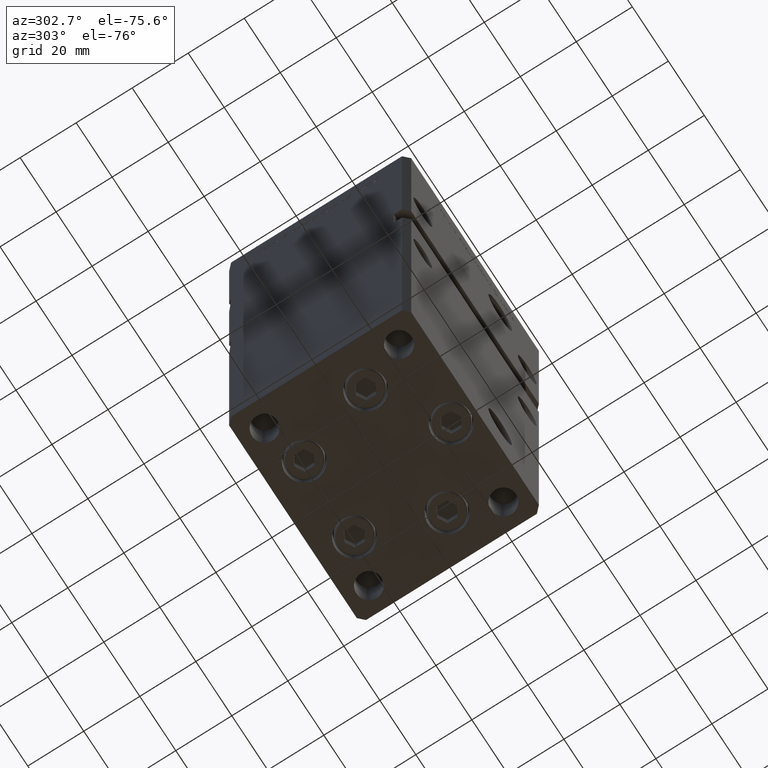
[diagram: clean part render]
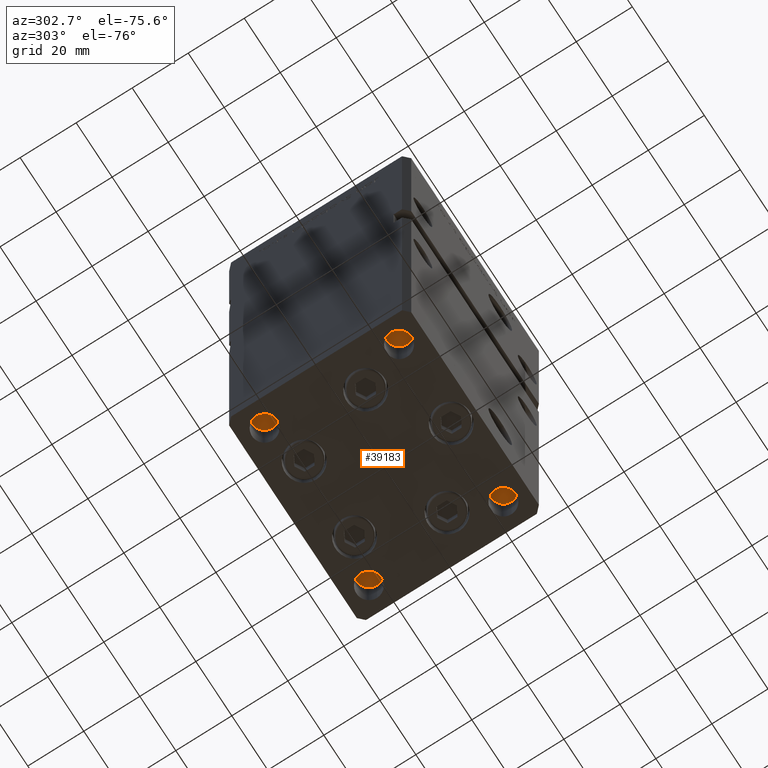
[diagram: same view with one face highlighted and labeled with its STEP entity id]
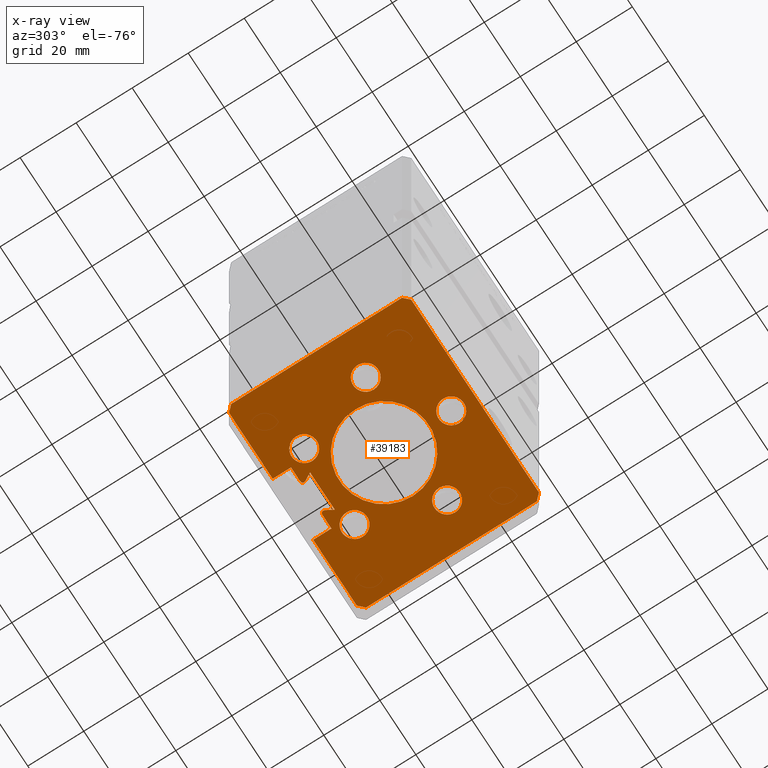
[diagram: x-ray of the same camera — body ghosted, the highlighted face saturated]
A machine part, auxiliary view. The second image highlights one B-rep face of the part: STEP entity #39183.
The next image is the same camera in x-ray: the body ghosted, the highlighted face saturated — about 0% of this face is hidden behind the body in this view.
In plain terms, the highlighted planar face has unit normal (0, 0, -1).
Its self-contained STEP definition (entity closure, byte-faithful):
#725 = DIRECTION ( 'NONE',  ( -1.000000000000000000, 0.000000000000000000, 0.000000000000000000 ) ) ;
#1099 = CARTESIAN_POINT ( 'NONE',  ( -35.49999999999999289, -32.50000000000000000, 0.000000000000000000 ) ) ;
#1628 = LINE ( 'NONE', #1099, #36816 ) ;
#1835 = AXIS2_PLACEMENT_3D ( 'NONE', #4671, #41501, #28367 ) ;
#1964 = EDGE_CURVE ( 'NONE', #11757, #12367, #46050, .T. ) ;
#2236 = AXIS2_PLACEMENT_3D ( 'NONE', #33245, #29779, #32984 ) ;
#2299 = LINE ( 'NONE', #18744, #11178 ) ;
#2336 = EDGE_CURVE ( 'NONE', #21238, #24756, #48105, .T. ) ;
#2414 = CIRCLE ( 'NONE', #4084, 16.00000000000000000 ) ;
#2524 = ORIENTED_EDGE ( 'NONE', *, *, #47862, .F. ) ;
#2592 = EDGE_CURVE ( 'NONE', #34089, #51096, #18256, .T. ) ;
#2799 = CARTESIAN_POINT ( 'NONE',  ( -5.375042956467928512, 24.59999999999899245, 0.000000000000000000 ) ) ;
#3296 = DIRECTION ( 'NONE',  ( -0.000000000000000000, -0.000000000000000000, -1.000000000000000000 ) ) ;
#3383 = EDGE_LOOP ( 'NONE', ( #33923, #40749 ) ) ;
#4084 = AXIS2_PLACEMENT_3D ( 'NONE', #41789, #49861, #41241 ) ;
#4313 = EDGE_CURVE ( 'NONE', #44512, #4630, #1628, .T. ) ;
#4351 = VECTOR ( 'NONE', #40785, 1000.000000000000000 ) ;
#4445 = ORIENTED_EDGE ( 'NONE', *, *, #33471, .F. ) ;
#4630 = VERTEX_POINT ( 'NONE', #39658 ) ;
#4671 = CARTESIAN_POINT ( 'NONE',  ( -13.99106857963322881, 19.49999999999999645, 0.000000000000000000 ) ) ;
#4686 = ORIENTED_EDGE ( 'NONE', *, *, #2592, .T. ) ;
#4834 = DIRECTION ( 'NONE',  ( -0.4999999999999996114, -0.8660254037844388186, -0.000000000000000000 ) ) ;
#5067 = AXIS2_PLACEMENT_3D ( 'NONE', #5196, #30218, #9779 ) ;
#5196 = CARTESIAN_POINT ( 'NONE',  ( 0.000000000000000000, 0.000000000000000000, 0.000000000000000000 ) ) ;
#5213 = DIRECTION ( 'NONE',  ( -0.000000000000000000, -0.000000000000000000, -1.000000000000000000 ) ) ;
#5329 = EDGE_LOOP ( 'NONE', ( #16553, #11680 ) ) ;
#5546 = CIRCLE ( 'NONE', #45878, 4.500000000000000888 ) ;
#5629 = VERTEX_POINT ( 'NONE', #52095 ) ;
#5812 = DIRECTION ( 'NONE',  ( 1.000000000000000000, 0.000000000000000000, 0.000000000000000000 ) ) ;
#5935 = ORIENTED_EDGE ( 'NONE', *, *, #47138, .T. ) ;
#6005 = VERTEX_POINT ( 'NONE', #36612 ) ;
#6013 = CARTESIAN_POINT ( 'NONE',  ( -37.49999999999999289, -30.50000000000000000, 0.000000000000000000 ) ) ;
#6062 = CARTESIAN_POINT ( 'NONE',  ( 11.24999999999998046, 26.00000000000000000, 0.000000000000000000 ) ) ;
#6126 = EDGE_LOOP ( 'NONE', ( #4686, #25356, #11504, #23418, #36285, #48198, #40872, #40144, #27737, #51902, #36032, #39822, #5935, #50141, #11754, #12365, #14523, #28897, #4445 ) ) ;
#6129 = VECTOR ( 'NONE', #4834, 1000.000000000000114 ) ;
#6344 = CIRCLE ( 'NONE', #9804, 4.500000000000000888 ) ;
#6377 = ORIENTED_EDGE ( 'NONE', *, *, #25554, .F. ) ;
#6915 = DIRECTION ( 'NONE',  ( 1.000000000000000000, 0.000000000000000000, 0.000000000000000000 ) ) ;
#6916 = CIRCLE ( 'NONE', #40403, 4.500000000000000000 ) ;
#6939 = CARTESIAN_POINT ( 'NONE',  ( -35.50000000000000711, 32.50000000000000000, 0.000000000000000000 ) ) ;
#7383 = VERTEX_POINT ( 'NONE', #16436 ) ;
#7821 = VECTOR ( 'NONE', #39163, 1000.000000000000114 ) ;
#7956 = DIRECTION ( 'NONE',  ( 0.000000000000000000, 0.000000000000000000, -1.000000000000000000 ) ) ;
#8013 = DIRECTION ( 'NONE',  ( -1.000000000000000000, 0.000000000000000000, 0.000000000000000000 ) ) ;
#8299 = VERTEX_POINT ( 'NONE', #50811 ) ;
#8521 = VERTEX_POINT ( 'NONE', #16640 ) ;
#8545 = CARTESIAN_POINT ( 'NONE',  ( 37.50000000000001421, 30.50000000000001066, 0.000000000000000000 ) ) ;
#8687 = PLANE ( 'NONE',  #5067 ) ;
#8729 = CIRCLE ( 'NONE', #43929, 4.499999999999997335 ) ;
#9142 = CARTESIAN_POINT ( 'NONE',  ( -6.876153656360448174, 21.99999999999987210, 0.000000000000000000 ) ) ;
#9232 = LINE ( 'NONE', #21614, #28509 ) ;
#9579 = LINE ( 'NONE', #6062, #33114 ) ;
#9779 = DIRECTION ( 'NONE',  ( -1.000000000000000000, 0.000000000000000000, -0.000000000000000000 ) ) ;
#9804 = AXIS2_PLACEMENT_3D ( 'NONE', #19535, #45012, #11711 ) ;
#9861 = CARTESIAN_POINT ( 'NONE',  ( -11.24999999999998046, 26.00000000000000000, 0.000000000000000000 ) ) ;
#10402 = LINE ( 'NONE', #18762, #7821 ) ;
#10477 = CIRCLE ( 'NONE', #52636, 0.9333333333340008142 ) ;
#11136 = EDGE_CURVE ( 'NONE', #44185, #45277, #37625, .T. ) ;
#11178 = VECTOR ( 'NONE', #26264, 1000.000000000000000 ) ;
#11504 = ORIENTED_EDGE ( 'NONE', *, *, #16987, .T. ) ;
#11680 = ORIENTED_EDGE ( 'NONE', *, *, #21478, .F. ) ;
#11711 = DIRECTION ( 'NONE',  ( -1.000000000000000000, 0.000000000000000000, 0.000000000000000000 ) ) ;
#11754 = ORIENTED_EDGE ( 'NONE', *, *, #4313, .F. ) ;
#11757 = VERTEX_POINT ( 'NONE', #17579 ) ;
#11869 = CARTESIAN_POINT ( 'NONE',  ( -35.49999999999999289, -32.50000000000000000, 0.000000000000000000 ) ) ;
#12294 = EDGE_CURVE ( 'NONE', #45277, #11757, #9232, .T. ) ;
#12365 = ORIENTED_EDGE ( 'NONE', *, *, #18760, .F. ) ;
#12367 = VERTEX_POINT ( 'NONE', #43090 ) ;
#12621 = LINE ( 'NONE', #16673, #14956 ) ;
#12780 = EDGE_CURVE ( 'NONE', #22279, #26910, #8729, .T. ) ;
#13367 = DIRECTION ( 'NONE',  ( 3.412570772413390973E-16, -1.000000000000000000, 0.000000000000000000 ) ) ;
#13608 = VERTEX_POINT ( 'NONE', #48639 ) ;
#13661 = CARTESIAN_POINT ( 'NONE',  ( 37.49999999999999289, -30.50000000000000000, 0.000000000000000000 ) ) ;
#13818 = FACE_BOUND ( 'NONE', #29995, .T. ) ;
#13883 = LINE ( 'NONE', #43428, #15226 ) ;
#14306 = DIRECTION ( 'NONE',  ( 0.000000000000000000, 0.000000000000000000, -1.000000000000000000 ) ) ;
#14523 = ORIENTED_EDGE ( 'NONE', *, *, #51006, .F. ) ;
#14956 = VECTOR ( 'NONE', #44622, 1000.000000000000000 ) ;
#15215 = EDGE_CURVE ( 'NONE', #8521, #8299, #45728, .T. ) ;
#15226 = VECTOR ( 'NONE', #18993, 1000.000000000000000 ) ;
#16144 = CARTESIAN_POINT ( 'NONE',  ( -11.24999999999998046, 32.50000000000000000, 0.000000000000000000 ) ) ;
#16155 = CARTESIAN_POINT ( 'NONE',  ( -37.49999999999999289, -30.50000000000000000, 0.000000000000000000 ) ) ;
#16436 = CARTESIAN_POINT ( 'NONE',  ( 9.491068579633221702, 19.50000000000000000, 0.000000000000000000 ) ) ;
#16553 = ORIENTED_EDGE ( 'NONE', *, *, #15215, .F. ) ;
#16640 = CARTESIAN_POINT ( 'NONE',  ( -27.12741699796952233, -8.000000000000008882, 0.000000000000000000 ) ) ;
#16673 = CARTESIAN_POINT ( 'NONE',  ( -6.183333333333980164, 26.00000000000000000, 0.000000000000000000 ) ) ;
#16987 = EDGE_CURVE ( 'NONE', #52443, #34983, #10477, .T. ) ;
#17403 = ORIENTED_EDGE ( 'NONE', *, *, #26764, .F. ) ;
#17579 = CARTESIAN_POINT ( 'NONE',  ( 6.876153656360448174, 21.99999999999987210, 0.000000000000000000 ) ) ;
#17937 = EDGE_CURVE ( 'NONE', #29589, #18287, #51562, .T. ) ;
#18082 = DIRECTION ( 'NONE',  ( 1.000000000000000000, 0.000000000000000000, 0.000000000000000000 ) ) ;
#18256 = LINE ( 'NONE', #38384, #21309 ) ;
#18287 = VERTEX_POINT ( 'NONE', #51230 ) ;
#18514 = CARTESIAN_POINT ( 'NONE',  ( 4.500000000000000000, -24.00000000000000000, 0.000000000000000000 ) ) ;
#18716 = EDGE_CURVE ( 'NONE', #51096, #52443, #12621, .T. ) ;
#18744 = CARTESIAN_POINT ( 'NONE',  ( 37.50000000000001421, 30.50000000000001066, 0.000000000000000000 ) ) ;
#18760 = EDGE_CURVE ( 'NONE', #51308, #44512, #49181, .T. ) ;
#18762 = CARTESIAN_POINT ( 'NONE',  ( 35.50000000000000711, 32.50000000000000000, 0.000000000000000000 ) ) ;
#18993 = DIRECTION ( 'NONE',  ( -1.000000000000000000, 0.000000000000000000, 0.000000000000000000 ) ) ;
#19205 = EDGE_LOOP ( 'NONE', ( #36956, #31029 ) ) ;
#19323 = DIRECTION ( 'NONE',  ( -1.000000000000000000, 0.000000000000000000, 0.000000000000000000 ) ) ;
#19366 = EDGE_CURVE ( 'NONE', #20061, #7383, #6344, .T. ) ;
#19535 = CARTESIAN_POINT ( 'NONE',  ( 13.99106857963322170, 19.50000000000000000, 0.000000000000000000 ) ) ;
#19601 = CARTESIAN_POINT ( 'NONE',  ( -5.249999999999979572, 25.06666666666599852, 0.000000000000000000 ) ) ;
#19631 = DIRECTION ( 'NONE',  ( 0.000000000000000000, 0.000000000000000000, -1.000000000000000000 ) ) ;
#19887 = CARTESIAN_POINT ( 'NONE',  ( -11.24999999999998046, 32.50000000000000000, 0.000000000000000000 ) ) ;
#20061 = VERTEX_POINT ( 'NONE', #36742 ) ;
#20122 = DIRECTION ( 'NONE',  ( -1.000000000000000000, 0.000000000000000000, 0.000000000000000000 ) ) ;
#20185 = CIRCLE ( 'NONE', #33907, 4.500000000000000888 ) ;
#20255 = AXIS2_PLACEMENT_3D ( 'NONE', #31136, #51813, #19323 ) ;
#21050 = EDGE_CURVE ( 'NONE', #34983, #44185, #22697, .T. ) ;
#21238 = VERTEX_POINT ( 'NONE', #47697 ) ;
#21309 = VECTOR ( 'NONE', #22270, 1000.000000000000000 ) ;
#21336 = DIRECTION ( 'NONE',  ( 1.000000000000000000, -0.000000000000000000, -0.000000000000000000 ) ) ;
#21478 = EDGE_CURVE ( 'NONE', #8299, #8521, #5546, .T. ) ;
#21583 = CARTESIAN_POINT ( 'NONE',  ( 13.99106857963322170, 19.50000000000000000, 0.000000000000000000 ) ) ;
#21614 = CARTESIAN_POINT ( 'NONE',  ( 6.876153656360448174, 21.99999999999987210, 0.000000000000000000 ) ) ;
#21787 = CARTESIAN_POINT ( 'NONE',  ( -6.183333333333980164, 26.00000000000000000, 0.000000000000000000 ) ) ;
#22139 = DIRECTION ( 'NONE',  ( -0.4999999999999996114, 0.8660254037844388186, 0.000000000000000000 ) ) ;
#22221 = CARTESIAN_POINT ( 'NONE',  ( -35.50000000000000711, 32.50000000000000000, 0.000000000000000000 ) ) ;
#22256 = CIRCLE ( 'NONE', #41082, 16.00000000000000000 ) ;
#22270 = DIRECTION ( 'NONE',  ( -0.000000000000000000, -1.000000000000000000, -0.000000000000000000 ) ) ;
#22279 = VERTEX_POINT ( 'NONE', #38186 ) ;
#22697 = CIRCLE ( 'NONE', #50144, 0.9333333333340008142 ) ;
#23358 = DIRECTION ( 'NONE',  ( 0.000000000000000000, 0.000000000000000000, -1.000000000000000000 ) ) ;
#23418 = ORIENTED_EDGE ( 'NONE', *, *, #21050, .T. ) ;
#23555 = DIRECTION ( 'NONE',  ( -0.7071067811865474617, -0.7071067811865474617, 0.000000000000000000 ) ) ;
#23739 = VERTEX_POINT ( 'NONE', #26802 ) ;
#24128 = CARTESIAN_POINT ( 'NONE',  ( -6.183333333333980164, 25.06666666666599852, 0.000000000000000000 ) ) ;
#24371 = DIRECTION ( 'NONE',  ( -1.000000000000000000, 0.000000000000000000, 0.000000000000000000 ) ) ;
#24415 = LINE ( 'NONE', #32468, #4351 ) ;
#24601 = CARTESIAN_POINT ( 'NONE',  ( -6.183333333333980164, 25.06666666666599852, 0.000000000000000000 ) ) ;
#24741 = VECTOR ( 'NONE', #22139, 1000.000000000000114 ) ;
#24756 = VERTEX_POINT ( 'NONE', #28111 ) ;
#25356 = ORIENTED_EDGE ( 'NONE', *, *, #18716, .T. ) ;
#25417 = EDGE_CURVE ( 'NONE', #12367, #6005, #32287, .T. ) ;
#25496 = DIRECTION ( 'NONE',  ( 0.000000000000000000, 0.000000000000000000, -1.000000000000000000 ) ) ;
#25554 = EDGE_CURVE ( 'NONE', #7383, #20061, #30585, .T. ) ;
#25720 = DIRECTION ( 'NONE',  ( 0.000000000000000000, 1.000000000000000000, 0.000000000000000000 ) ) ;
#26264 = DIRECTION ( 'NONE',  ( -3.412570772413390973E-16, -1.000000000000000000, 0.000000000000000000 ) ) ;
#26536 = CARTESIAN_POINT ( 'NONE',  ( 6.183333333333980164, 25.06666666666599852, 0.000000000000000000 ) ) ;
#26764 = EDGE_CURVE ( 'NONE', #13608, #52346, #20185, .T. ) ;
#26802 = CARTESIAN_POINT ( 'NONE',  ( -16.00000000000000000, 0.000000000000000000, 0.000000000000000000 ) ) ;
#26889 = VERTEX_POINT ( 'NONE', #13661 ) ;
#26910 = VERTEX_POINT ( 'NONE', #50470 ) ;
#26966 = CARTESIAN_POINT ( 'NONE',  ( 11.24999999999998046, 26.00000000000000000, 0.000000000000000000 ) ) ;
#26993 = VERTEX_POINT ( 'NONE', #18514 ) ;
#27122 = DIRECTION ( 'NONE',  ( -0.7071067811865506814, -0.7071067811865443531, 0.000000000000000000 ) ) ;
#27161 = CIRCLE ( 'NONE', #2236, 4.500000000000000888 ) ;
#27338 = VECTOR ( 'NONE', #37032, 1000.000000000000000 ) ;
#27429 = DIRECTION ( 'NONE',  ( -1.000000000000000000, 0.000000000000000000, 0.000000000000000000 ) ) ;
#27737 = ORIENTED_EDGE ( 'NONE', *, *, #48705, .T. ) ;
#28036 = VERTEX_POINT ( 'NONE', #32292 ) ;
#28111 = CARTESIAN_POINT ( 'NONE',  ( 11.24999999999998046, 32.50000000000000000, 0.000000000000000000 ) ) ;
#28191 = DIRECTION ( 'NONE',  ( 0.000000000000000000, 0.000000000000000000, -1.000000000000000000 ) ) ;
#28367 = DIRECTION ( 'NONE',  ( -1.000000000000000000, 0.000000000000000000, 0.000000000000000000 ) ) ;
#28425 = VERTEX_POINT ( 'NONE', #8545 ) ;
#28509 = VECTOR ( 'NONE', #21336, 1000.000000000000000 ) ;
#28667 = VECTOR ( 'NONE', #53209, 1000.000000000000114 ) ;
#28897 = ORIENTED_EDGE ( 'NONE', *, *, #17937, .F. ) ;
#28899 = DIRECTION ( 'NONE',  ( 1.000000000000000000, 0.000000000000000000, 0.000000000000000000 ) ) ;
#29128 = FACE_BOUND ( 'NONE', #5329, .T. ) ;
#29254 = CARTESIAN_POINT ( 'NONE',  ( 22.62741699796951877, -8.000000000000000000, 0.000000000000000000 ) ) ;
#29330 = VECTOR ( 'NONE', #23555, 1000.000000000000114 ) ;
#29430 = EDGE_CURVE ( 'NONE', #26993, #28036, #48563, .T. ) ;
#29560 = ORIENTED_EDGE ( 'NONE', *, *, #19366, .F. ) ;
#29589 = VERTEX_POINT ( 'NONE', #22221 ) ;
#29604 = EDGE_CURVE ( 'NONE', #40997, #24756, #9579, .T. ) ;
#29779 = DIRECTION ( 'NONE',  ( 0.000000000000000000, 0.000000000000000000, -1.000000000000000000 ) ) ;
#29995 = EDGE_LOOP ( 'NONE', ( #2524, #51494 ) ) ;
#30115 = ORIENTED_EDGE ( 'NONE', *, *, #30400, .F. ) ;
#30218 = DIRECTION ( 'NONE',  ( 0.000000000000000000, 0.000000000000000000, -1.000000000000000000 ) ) ;
#30400 = EDGE_CURVE ( 'NONE', #52346, #13608, #27161, .T. ) ;
#30585 = CIRCLE ( 'NONE', #44307, 4.500000000000000888 ) ;
#31029 = ORIENTED_EDGE ( 'NONE', *, *, #38587, .T. ) ;
#31136 = CARTESIAN_POINT ( 'NONE',  ( 0.000000000000000000, -24.00000000000000000, 0.000000000000000000 ) ) ;
#32287 = CIRCLE ( 'NONE', #41724, 0.9333333333340008142 ) ;
#32292 = CARTESIAN_POINT ( 'NONE',  ( -4.500000000000000000, -24.00000000000000000, 0.000000000000000000 ) ) ;
#32468 = CARTESIAN_POINT ( 'NONE',  ( 6.183333333333980164, 26.00000000000000000, 0.000000000000000000 ) ) ;
#32984 = DIRECTION ( 'NONE',  ( -1.000000000000000000, 0.000000000000000000, 0.000000000000000000 ) ) ;
#33114 = VECTOR ( 'NONE', #25720, 1000.000000000000000 ) ;
#33245 = CARTESIAN_POINT ( 'NONE',  ( 22.62741699796951877, -8.000000000000000000, 0.000000000000000000 ) ) ;
#33471 = EDGE_CURVE ( 'NONE', #34089, #29589, #13883, .T. ) ;
#33694 = FACE_BOUND ( 'NONE', #46936, .T. ) ;
#33907 = AXIS2_PLACEMENT_3D ( 'NONE', #29254, #28191, #8013 ) ;
#33923 = ORIENTED_EDGE ( 'NONE', *, *, #12780, .F. ) ;
#34089 = VERTEX_POINT ( 'NONE', #16144 ) ;
#34229 = FACE_BOUND ( 'NONE', #3383, .T. ) ;
#34387 = CARTESIAN_POINT ( 'NONE',  ( 18.12741699796951877, -8.000000000000000000, 0.000000000000000000 ) ) ;
#34983 = VERTEX_POINT ( 'NONE', #19601 ) ;
#35635 = LINE ( 'NONE', #52027, #29330 ) ;
#36032 = ORIENTED_EDGE ( 'NONE', *, *, #2336, .F. ) ;
#36215 = DIRECTION ( 'NONE',  ( 1.000000000000000000, 0.000000000000000000, 0.000000000000000000 ) ) ;
#36262 = CARTESIAN_POINT ( 'NONE',  ( -13.99106857963322881, 19.49999999999999645, 0.000000000000000000 ) ) ;
#36285 = ORIENTED_EDGE ( 'NONE', *, *, #11136, .T. ) ;
#36612 = CARTESIAN_POINT ( 'NONE',  ( 6.183333333333980164, 26.00000000000000000, 0.000000000000000000 ) ) ;
#36742 = CARTESIAN_POINT ( 'NONE',  ( 18.49106857963322170, 19.50000000000000000, 0.000000000000000000 ) ) ;
#36816 = VECTOR ( 'NONE', #18082, 1000.000000000000000 ) ;
#36866 = EDGE_CURVE ( 'NONE', #23739, #5629, #2414, .T. ) ;
#36956 = ORIENTED_EDGE ( 'NONE', *, *, #36866, .T. ) ;
#37032 = DIRECTION ( 'NONE',  ( -1.000000000000000000, 0.000000000000000000, 0.000000000000000000 ) ) ;
#37562 = CARTESIAN_POINT ( 'NONE',  ( -22.62741699796951877, -8.000000000000008882, 0.000000000000000000 ) ) ;
#37625 = LINE ( 'NONE', #9142, #6129 ) ;
#37784 = CARTESIAN_POINT ( 'NONE',  ( -22.62741699796951877, -8.000000000000008882, 0.000000000000000000 ) ) ;
#38186 = CARTESIAN_POINT ( 'NONE',  ( -18.49106857963322526, 19.49999999999999645, 0.000000000000000000 ) ) ;
#38384 = CARTESIAN_POINT ( 'NONE',  ( -11.24999999999998046, 26.00000000000000000, 0.000000000000000000 ) ) ;
#38587 = EDGE_CURVE ( 'NONE', #5629, #23739, #22256, .T. ) ;
#39163 = DIRECTION ( 'NONE',  ( 0.7071067811865506814, -0.7071067811865443531, 0.000000000000000000 ) ) ;
#39183 = ADVANCED_FACE ( 'NONE', ( #34229, #50629, #33694, #13818, #29128, #45511, #50096 ), #8687, .T. ) ;
#39658 = CARTESIAN_POINT ( 'NONE',  ( 35.49999999999999289, -32.50000000000000000, 0.000000000000000000 ) ) ;
#39822 = ORIENTED_EDGE ( 'NONE', *, *, #48893, .T. ) ;
#39845 = CARTESIAN_POINT ( 'NONE',  ( -6.876153656360448174, 21.99999999999987210, 0.000000000000000000 ) ) ;
#40144 = ORIENTED_EDGE ( 'NONE', *, *, #25417, .T. ) ;
#40403 = AXIS2_PLACEMENT_3D ( 'NONE', #44300, #23358, #20122 ) ;
#40749 = ORIENTED_EDGE ( 'NONE', *, *, #51263, .F. ) ;
#40785 = DIRECTION ( 'NONE',  ( 1.000000000000000000, 0.000000000000000000, 0.000000000000000000 ) ) ;
#40872 = ORIENTED_EDGE ( 'NONE', *, *, #1964, .T. ) ;
#40997 = VERTEX_POINT ( 'NONE', #26966 ) ;
#41082 = AXIS2_PLACEMENT_3D ( 'NONE', #43475, #51536, #6915 ) ;
#41241 = DIRECTION ( 'NONE',  ( 1.000000000000000000, 0.000000000000000000, 0.000000000000000000 ) ) ;
#41310 = CIRCLE ( 'NONE', #1835, 4.499999999999997335 ) ;
#41501 = DIRECTION ( 'NONE',  ( 0.000000000000000000, 0.000000000000000000, -1.000000000000000000 ) ) ;
#41724 = AXIS2_PLACEMENT_3D ( 'NONE', #26536, #3296, #5812 ) ;
#41789 = CARTESIAN_POINT ( 'NONE',  ( 0.000000000000000000, 0.000000000000000000, 0.000000000000000000 ) ) ;
#42536 = DIRECTION ( 'NONE',  ( -1.000000000000000000, 0.000000000000000000, 0.000000000000000000 ) ) ;
#42652 = CARTESIAN_POINT ( 'NONE',  ( -37.50000000000001421, 30.50000000000001066, 0.000000000000000000 ) ) ;
#43090 = CARTESIAN_POINT ( 'NONE',  ( 5.375042956467928512, 24.59999999999899245, 0.000000000000000000 ) ) ;
#43172 = AXIS2_PLACEMENT_3D ( 'NONE', #37784, #7956, #24371 ) ;
#43428 = CARTESIAN_POINT ( 'NONE',  ( -11.24999999999998046, 32.50000000000000000, 0.000000000000000000 ) ) ;
#43475 = CARTESIAN_POINT ( 'NONE',  ( 0.000000000000000000, 0.000000000000000000, 0.000000000000000000 ) ) ;
#43929 = AXIS2_PLACEMENT_3D ( 'NONE', #36262, #19631, #27429 ) ;
#43961 = VECTOR ( 'NONE', #27122, 1000.000000000000114 ) ;
#44102 = EDGE_LOOP ( 'NONE', ( #6377, #29560 ) ) ;
#44185 = VERTEX_POINT ( 'NONE', #2799 ) ;
#44300 = CARTESIAN_POINT ( 'NONE',  ( 0.000000000000000000, -24.00000000000000000, 0.000000000000000000 ) ) ;
#44307 = AXIS2_PLACEMENT_3D ( 'NONE', #21583, #14306, #42536 ) ;
#44512 = VERTEX_POINT ( 'NONE', #11869 ) ;
#44622 = DIRECTION ( 'NONE',  ( 1.000000000000000000, -0.000000000000000000, -0.000000000000000000 ) ) ;
#44780 = VECTOR ( 'NONE', #13367, 1000.000000000000000 ) ;
#45012 = DIRECTION ( 'NONE',  ( 0.000000000000000000, 0.000000000000000000, -1.000000000000000000 ) ) ;
#45277 = VERTEX_POINT ( 'NONE', #39845 ) ;
#45511 = FACE_OUTER_BOUND ( 'NONE', #6126, .T. ) ;
#45553 = DIRECTION ( 'NONE',  ( -0.000000000000000000, -0.000000000000000000, -1.000000000000000000 ) ) ;
#45728 = CIRCLE ( 'NONE', #43172, 4.500000000000000888 ) ;
#45878 = AXIS2_PLACEMENT_3D ( 'NONE', #37562, #25496, #725 ) ;
#46050 = LINE ( 'NONE', #46853, #24741 ) ;
#46853 = CARTESIAN_POINT ( 'NONE',  ( 6.876153656360448174, 21.99999999999987210, 0.000000000000000000 ) ) ;
#46936 = EDGE_LOOP ( 'NONE', ( #30115, #17403 ) ) ;
#47138 = EDGE_CURVE ( 'NONE', #28425, #26889, #2299, .T. ) ;
#47697 = CARTESIAN_POINT ( 'NONE',  ( 35.50000000000000711, 32.50000000000000000, 0.000000000000000000 ) ) ;
#47862 = EDGE_CURVE ( 'NONE', #28036, #26993, #6916, .T. ) ;
#48105 = LINE ( 'NONE', #19887, #27338 ) ;
#48198 = ORIENTED_EDGE ( 'NONE', *, *, #12294, .T. ) ;
#48563 = CIRCLE ( 'NONE', #20255, 4.500000000000000000 ) ;
#48639 = CARTESIAN_POINT ( 'NONE',  ( 27.12741699796952233, -8.000000000000000000, 0.000000000000000000 ) ) ;
#48705 = EDGE_CURVE ( 'NONE', #6005, #40997, #24415, .T. ) ;
#48893 = EDGE_CURVE ( 'NONE', #21238, #28425, #10402, .T. ) ;
#49181 = LINE ( 'NONE', #16155, #28667 ) ;
#49861 = DIRECTION ( 'NONE',  ( -0.000000000000000000, 0.000000000000000000, 1.000000000000000000 ) ) ;
#50096 = FACE_BOUND ( 'NONE', #19205, .T. ) ;
#50141 = ORIENTED_EDGE ( 'NONE', *, *, #51201, .T. ) ;
#50144 = AXIS2_PLACEMENT_3D ( 'NONE', #24601, #45553, #28899 ) ;
#50182 = LINE ( 'NONE', #42652, #44780 ) ;
#50470 = CARTESIAN_POINT ( 'NONE',  ( -9.491068579633232360, 19.49999999999999645, 0.000000000000000000 ) ) ;
#50629 = FACE_BOUND ( 'NONE', #44102, .T. ) ;
#50811 = CARTESIAN_POINT ( 'NONE',  ( -18.12741699796951877, -8.000000000000008882, 0.000000000000000000 ) ) ;
#51006 = EDGE_CURVE ( 'NONE', #18287, #51308, #50182, .T. ) ;
#51096 = VERTEX_POINT ( 'NONE', #9861 ) ;
#51201 = EDGE_CURVE ( 'NONE', #26889, #4630, #35635, .T. ) ;
#51230 = CARTESIAN_POINT ( 'NONE',  ( -37.50000000000001421, 30.50000000000001066, 0.000000000000000000 ) ) ;
#51263 = EDGE_CURVE ( 'NONE', #26910, #22279, #41310, .T. ) ;
#51308 = VERTEX_POINT ( 'NONE', #6013 ) ;
#51494 = ORIENTED_EDGE ( 'NONE', *, *, #29430, .F. ) ;
#51536 = DIRECTION ( 'NONE',  ( -0.000000000000000000, 0.000000000000000000, 1.000000000000000000 ) ) ;
#51562 = LINE ( 'NONE', #6939, #43961 ) ;
#51813 = DIRECTION ( 'NONE',  ( 0.000000000000000000, 0.000000000000000000, -1.000000000000000000 ) ) ;
#51902 = ORIENTED_EDGE ( 'NONE', *, *, #29604, .T. ) ;
#52027 = CARTESIAN_POINT ( 'NONE',  ( 37.49999999999999289, -30.50000000000000000, 0.000000000000000000 ) ) ;
#52095 = CARTESIAN_POINT ( 'NONE',  ( 16.00000000000000000, 1.959434878635765131E-15, 0.000000000000000000 ) ) ;
#52346 = VERTEX_POINT ( 'NONE', #34387 ) ;
#52443 = VERTEX_POINT ( 'NONE', #21787 ) ;
#52636 = AXIS2_PLACEMENT_3D ( 'NONE', #24128, #5213, #36215 ) ;
#53209 = DIRECTION ( 'NONE',  ( 0.7071067811865474617, -0.7071067811865474617, 0.000000000000000000 ) ) ;